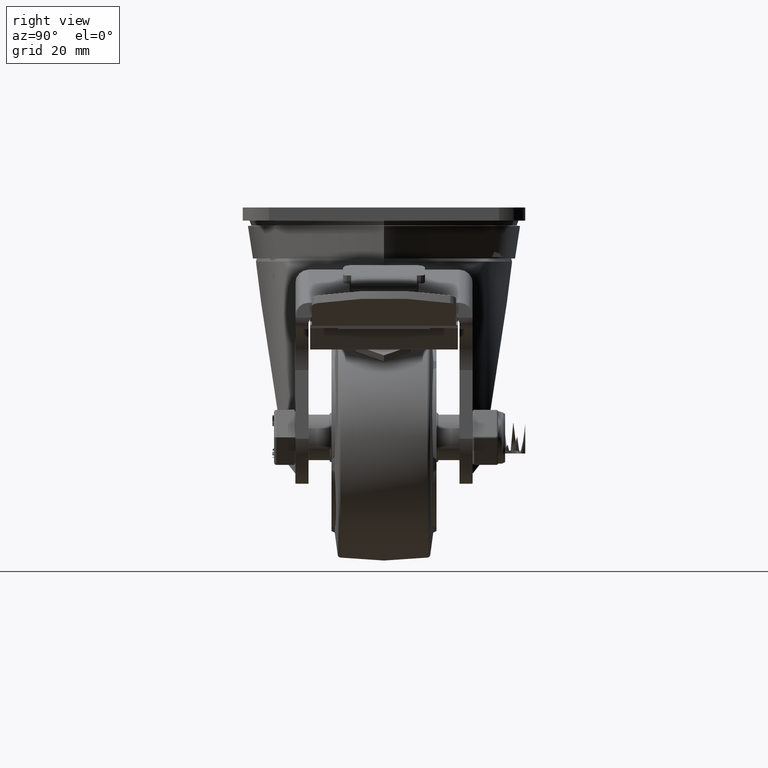
[diagram: clean part render]
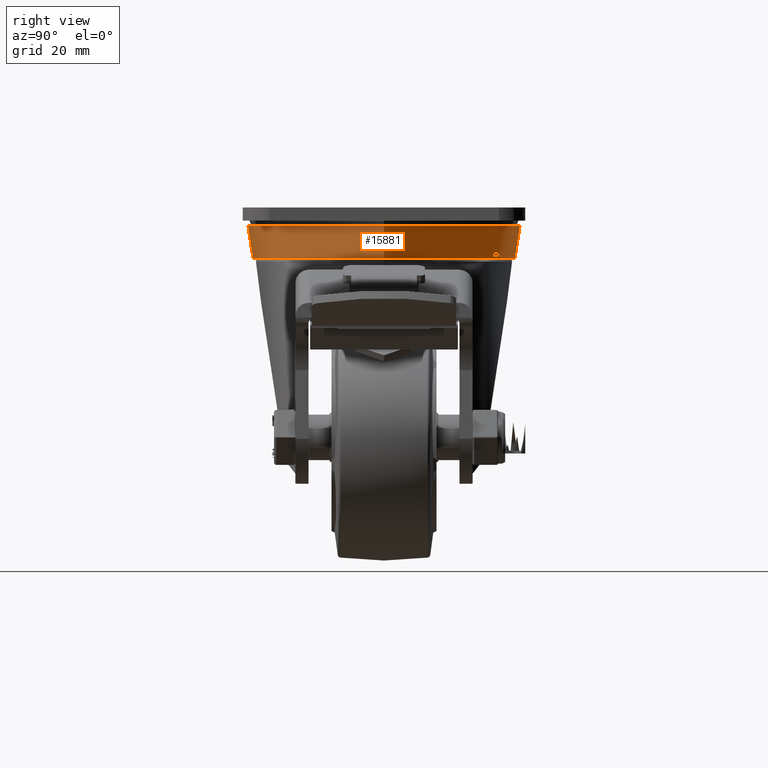
[diagram: same view with one face highlighted and labeled with its STEP entity id]
A machine part, right view. The second image highlights one B-rep face of the part: STEP entity #15881.
In plain terms, the highlighted conical surface has half-angle 8.973 deg.
Its self-contained STEP definition (entity closure, byte-faithful):
#1466=CONICAL_SURFACE('',#17313,41.707950097964,0.156601876982016);
#1811=FACE_OUTER_BOUND('',#2805,.T.);
#2805=EDGE_LOOP('',(#11945,#11946,#11947,#11948));
#3994=LINE('',#26184,#5086);
#5086=VECTOR('',#20085,41.707950097964);
#5937=CIRCLE('',#17307,42.4877629653291);
#5940=CIRCLE('',#17312,40.928137230599);
#7081=VERTEX_POINT('',#26170);
#7084=VERTEX_POINT('',#26180);
#8820=EDGE_CURVE('',#7081,#7081,#5937,.T.);
#8826=EDGE_CURVE('',#7084,#7084,#5940,.T.);
#8827=EDGE_CURVE('',#7081,#7084,#3994,.T.);
#11945=ORIENTED_EDGE('',*,*,#8820,.T.);
#11946=ORIENTED_EDGE('',*,*,#8827,.T.);
#11947=ORIENTED_EDGE('',*,*,#8826,.F.);
#11948=ORIENTED_EDGE('',*,*,#8827,.F.);
#15881=ADVANCED_FACE('',(#1811),#1466,.T.);
#17307=AXIS2_PLACEMENT_3D('',#26171,#20068,#20069);
#17312=AXIS2_PLACEMENT_3D('',#26182,#20081,#20082);
#17313=AXIS2_PLACEMENT_3D('',#26183,#20083,#20084);
#20068=DIRECTION('center_axis',(2.52543396115885E-16,0.,-1.));
#20069=DIRECTION('ref_axis',(-1.,0.,-2.52543396115885E-16));
#20081=DIRECTION('center_axis',(2.52543396115885E-16,0.,-1.));
#20082=DIRECTION('ref_axis',(-1.,0.,-2.52543396115885E-16));
#20083=DIRECTION('center_axis',(-2.52543396115885E-16,0.,1.));
#20084=DIRECTION('ref_axis',(-1.,0.,-2.52543396115885E-16));
#20085=DIRECTION('',(-0.155962573473011,-1.90999066390508E-17,-0.987762965329069));
#26170=CARTESIAN_POINT('',(42.4877629653291,5.20325029184217E-15,-5.65596257347299));
#26171=CARTESIAN_POINT('Origin',(-4.18519135390027E-16,0.,-5.655962573473));
#26180=CARTESIAN_POINT('',(40.928137230599,5.01225122545166E-15,-15.5335922267637));
#26182=CARTESIAN_POINT('Origin',(2.07601100282698E-15,0.,-15.5335922267637));
#26183=CARTESIAN_POINT('Origin',(8.28745933718474E-16,0.,-10.5947774001183));
#26184=CARTESIAN_POINT('',(41.707950097964,5.10775075864692E-15,-10.5947774001183));